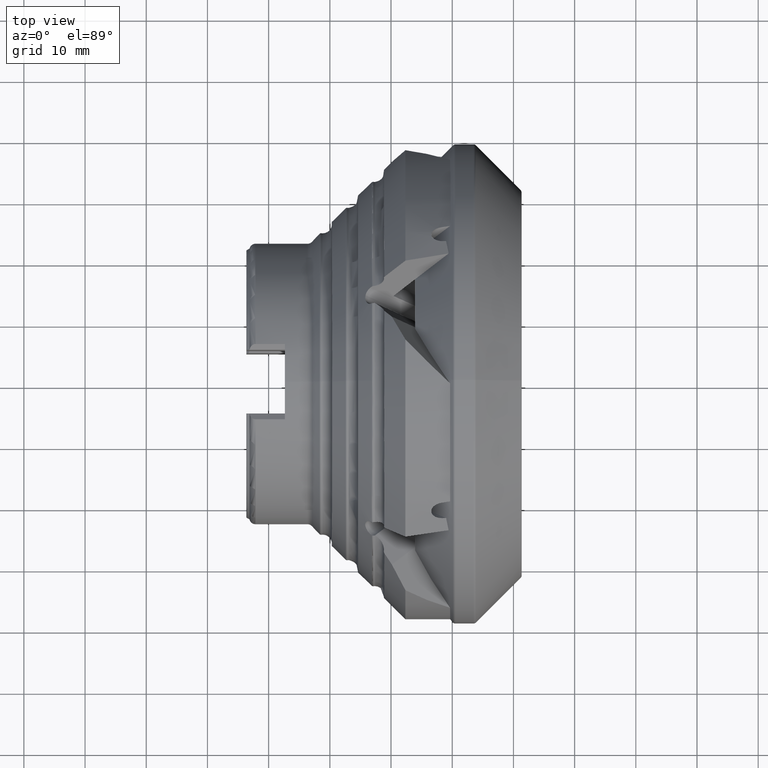
[diagram: clean part render]
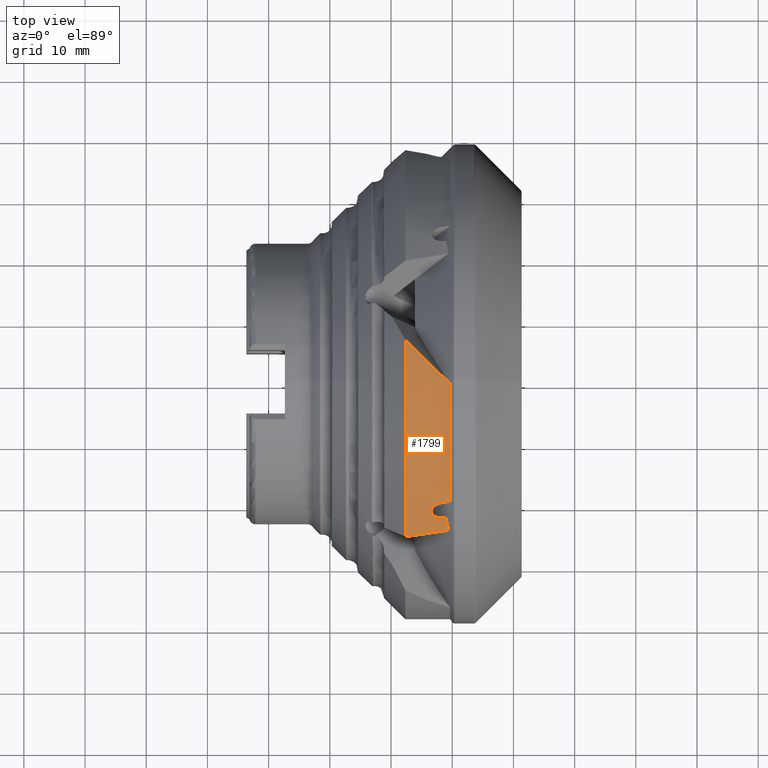
[diagram: same view with one face highlighted and labeled with its STEP entity id]
A machine part, top view. The second image highlights one B-rep face of the part: STEP entity #1799.
In plain terms, the highlighted cylindrical surface (partial cylindrical patch) has radius 38.5 mm, axis along (1, -0, -0).
Its self-contained STEP definition (entity closure, byte-faithful):
#546 = VERTEX_POINT ( 'NONE', #1586 ) ;
#547 = VERTEX_POINT ( 'NONE', #5865 ) ;
#582 = VERTEX_POINT ( 'NONE', #1588 ) ;
#608 = VERTEX_POINT ( 'NONE', #10106 ) ;
#611 = VERTEX_POINT ( 'NONE', #10093 ) ;
#615 = VERTEX_POINT ( 'NONE', #10091 ) ;
#625 = VERTEX_POINT ( 'NONE', #10090 ) ;
#893 = FACE_OUTER_BOUND ( 'NONE', #1278, .T. ) ;
#908 = CYLINDRICAL_SURFACE ( 'NONE', #10183, 38.50000000000000000 ) ;
#946 = B_SPLINE_CURVE_WITH_KNOTS ( 'NONE', 3,
 ( #6259, #6260, #6264, #6265, #6266, #6267, #6268, #6269, #6270, #6271, #6272, #6273, #6274, #6275, #6276, #6277, #6278, #6279, #6280, #6281 ),
 .UNSPECIFIED., .F., .F.,
 ( 4, 2, 2, 2, 2, 2, 2, 2, 2, 4 ),
 ( 0.007588231192986519100, 0.008057779863519376800, 0.008527328534052235400, 0.008996877204585092300, 0.009466425875117950900, 0.009935974545650809500, 0.01040552321618366600, 0.01064029755145009000, 0.01087507188671651600, 0.01134462055724934500 ),
 .UNSPECIFIED. ) ;
#997 =( BOUNDED_CURVE ( )  B_SPLINE_CURVE ( 3, ( #6246, #6245, #6251, #6252 ),
 .UNSPECIFIED., .F., .F. ) 
 B_SPLINE_CURVE_WITH_KNOTS ( ( 4, 4 ),
 ( 0.1297741447534010200, 0.1951501227432078700 ),
 .UNSPECIFIED. ) 
 CURVE ( )  GEOMETRIC_REPRESENTATION_ITEM ( )  RATIONAL_B_SPLINE_CURVE ( ( 1.000000000000000000, 0.9996438635046415200, 0.9996438635046415200, 1.000000000000000000 ) ) 
 REPRESENTATION_ITEM ( '' )  );
#1010 =( BOUNDED_CURVE ( )  B_SPLINE_CURVE ( 3, ( #6158, #6157, #6165, #6166 ),
 .UNSPECIFIED., .F., .F. ) 
 B_SPLINE_CURVE_WITH_KNOTS ( ( 4, 4 ),
 ( 4.794935019442981200, 4.801814565808554000 ),
 .UNSPECIFIED. ) 
 CURVE ( )  GEOMETRIC_REPRESENTATION_ITEM ( )  RATIONAL_B_SPLINE_CURVE ( ( 1.000000000000000000, 0.9999960559907057300, 0.9999960559907057300, 1.000000000000000000 ) ) 
 REPRESENTATION_ITEM ( '' )  );
#1012 =( BOUNDED_CURVE ( )  B_SPLINE_CURVE ( 3, ( #6237, #6238, #6243, #6244 ),
 .UNSPECIFIED., .F., .F. ) 
 B_SPLINE_CURVE_WITH_KNOTS ( ( 4, 4 ),
 ( 4.049123598765458400, 4.236572925115218000 ),
 .UNSPECIFIED. ) 
 CURVE ( )  GEOMETRIC_REPRESENTATION_ITEM ( )  RATIONAL_B_SPLINE_CURVE ( ( 1.000000000000000000, 0.9970740386585559300, 0.9970740386585559300, 1.000000000000000000 ) ) 
 REPRESENTATION_ITEM ( '' )  );
#1014 = B_SPLINE_CURVE_WITH_KNOTS ( 'NONE', 3,
 ( #4808, #4809, #4814, #4815, #4816, #4817, #4818, #4819 ),
 .UNSPECIFIED., .F., .F.,
 ( 4, 2, 2, 4 ),
 ( 0.0000000000000000000, 0.0004693685240489173300, 0.0009387370480978346700, 0.001877474096195672600 ),
 .UNSPECIFIED. ) ;
#1016 =( BOUNDED_CURVE ( )  B_SPLINE_CURVE ( 3, ( #6250, #6249, #6255, #6256 ),
 .UNSPECIFIED., .F., .F. ) 
 B_SPLINE_CURVE_WITH_KNOTS ( ( 4, 4 ),
 ( 4.617844144964361200, 4.653620486408035700 ),
 .UNSPECIFIED. ) 
 CURVE ( )  GEOMETRIC_REPRESENTATION_ITEM ( )  RATIONAL_B_SPLINE_CURVE ( ( 1.000000000000000000, 0.9998933406269189300, 0.9998933406269189300, 1.000000000000000000 ) ) 
 REPRESENTATION_ITEM ( '' )  );
#1145 = ORIENTED_EDGE ( 'NONE', *, *, #5219, .T. ) ;
#1173 = ORIENTED_EDGE ( 'NONE', *, *, #5232, .T. ) ;
#1278 = EDGE_LOOP ( 'NONE', ( #1145, #1173, #2274, #2153, #3391, #2350, #2407, #2184 ) ) ;
#1586 = CARTESIAN_POINT ( 'NONE',  ( -10.58513342630508400, -24.42008277018929600, 29.76423285584736800 ) ) ;
#1588 = CARTESIAN_POINT ( 'NONE',  ( -13.24890545811719500, -20.82203722574316600, 32.38352614786978700 ) ) ;
#1799 = ADVANCED_FACE ( 'NONE', ( #893 ), #908, .T. ) ;
#2153 = ORIENTED_EDGE ( 'NONE', *, *, #5235, .T. ) ;
#2184 = ORIENTED_EDGE ( 'NONE', *, *, #8600, .T. ) ;
#2274 = ORIENTED_EDGE ( 'NONE', *, *, #5236, .F. ) ;
#2350 = ORIENTED_EDGE ( 'NONE', *, *, #5238, .T. ) ;
#2407 = ORIENTED_EDGE ( 'NONE', *, *, #5242, .T. ) ;
#2780 = DIRECTION ( 'NONE',  ( 0.0000000000000000000, 0.0000000000000000000, -1.000000000000000000 ) ) ;
#2781 = CARTESIAN_POINT ( 'NONE',  ( 0.0000000000000000000, 0.0000000000000000000, 0.0000000000000000000 ) ) ;
#2782 = DIRECTION ( 'NONE',  ( 1.000000000000000000, -0.0000000000000000000, -0.0000000000000000000 ) ) ;
#3391 = ORIENTED_EDGE ( 'NONE', *, *, #5239, .T. ) ;
#3499 = VERTEX_POINT ( 'NONE', #8128 ) ;
#4808 = CARTESIAN_POINT ( 'NONE',  ( -13.24890545811719500, -20.82203722574316600, 32.38352614786978700 ) ) ;
#4809 = CARTESIAN_POINT ( 'NONE',  ( -13.16942779111207400, -20.70604201928763300, 32.45810902361333900 ) ) ;
#4814 = CARTESIAN_POINT ( 'NONE',  ( -13.07072295703834700, -20.60349526956583300, 32.52319025780966700 ) ) ;
#4815 = CARTESIAN_POINT ( 'NONE',  ( -12.84462646087095200, -20.41869157577315300, 32.63953057570156300 ) ) ;
#4816 = CARTESIAN_POINT ( 'NONE',  ( -12.71716473134750200, -20.33726432231901500, 32.69024734747878100 ) ) ;
#4817 = CARTESIAN_POINT ( 'NONE',  ( -12.31635575403101700, -20.13018023356589800, 32.81847362058464100 ) ) ;
#4818 = CARTESIAN_POINT ( 'NONE',  ( -12.01527678185007600, -20.03582169711978600, 32.87581863724686600 ) ) ;
#4819 = CARTESIAN_POINT ( 'NONE',  ( -11.70756281324171900, -19.98452280661854300, 32.90697263790369900 ) ) ;
#5219 = EDGE_CURVE ( 'NONE', #625, #3499, #1010, .T. ) ;
#5232 = EDGE_CURVE ( 'NONE', #3499, #611, #8931, .T. ) ;
#5235 = EDGE_CURVE ( 'NONE', #547, #608, #8941, .T. ) ;
#5236 = EDGE_CURVE ( 'NONE', #547, #611, #1012, .T. ) ;
#5238 = EDGE_CURVE ( 'NONE', #546, #615, #997, .T. ) ;
#5239 = EDGE_CURVE ( 'NONE', #608, #546, #1016, .T. ) ;
#5242 = EDGE_CURVE ( 'NONE', #615, #582, #946, .T. ) ;
#5865 = CARTESIAN_POINT ( 'NONE',  ( -17.65000000000000900, 6.630389324819621100, 37.92476680747447700 ) ) ;
#6157 = CARTESIAN_POINT ( 'NONE',  ( -11.25490859388692800, -19.90906097646953300, 32.95280087869134900 ) ) ;
#6158 = CARTESIAN_POINT ( 'NONE',  ( -11.70756281324171900, -19.98452280661854300, 32.90697263790369900 ) ) ;
#6165 = CARTESIAN_POINT ( 'NONE',  ( -10.80238587138589800, -19.83344195431094900, 32.99836927729068500 ) ) ;
#6166 = CARTESIAN_POINT ( 'NONE',  ( -10.35000000000003000, -19.75766663486915700, 33.04367729453515100 ) ) ;
#6210 = CARTESIAN_POINT ( 'NONE',  ( -10.35000000000003200, 0.0000000000000000000, 0.0000000000000000000 ) ) ;
#6211 = DIRECTION ( 'NONE',  ( -1.000000000000000000, -0.0000000000000000000, -0.0000000000000000000 ) ) ;
#6212 = DIRECTION ( 'NONE',  ( 0.0000000000000000000, 0.0000000000000000000, -1.000000000000000000 ) ) ;
#6237 = CARTESIAN_POINT ( 'NONE',  ( -17.65000000000000900, 6.630389324819621100, 37.92476680747447700 ) ) ;
#6238 = CARTESIAN_POINT ( 'NONE',  ( -15.36648493954088800, 4.257256076960209700, 38.33966183986476800 ) ) ;
#6239 = CARTESIAN_POINT ( 'NONE',  ( -17.65000000000000600, 0.0000000000000000000, 0.0000000000000000000 ) ) ;
#6240 = DIRECTION ( 'NONE',  ( 1.000000000000000000, -0.0000000000000000000, -0.0000000000000000000 ) ) ;
#6241 = DIRECTION ( 'NONE',  ( 0.0000000000000000000, 0.0000000000000000000, -1.000000000000000000 ) ) ;
#6243 = CARTESIAN_POINT ( 'NONE',  ( -12.92601087342800000, 1.855709382128033300, 38.53064030079281800 ) ) ;
#6244 = CARTESIAN_POINT ( 'NONE',  ( -10.34999999998584700, -0.5531702613108853100, 38.49602580349162700 ) ) ;
#6245 = CARTESIAN_POINT ( 'NONE',  ( -10.69775518810635300, -23.77134529016114000, 30.29648991199721000 ) ) ;
#6246 = CARTESIAN_POINT ( 'NONE',  ( -10.58513342630508400, -24.42008277018929600, 29.76423285584736800 ) ) ;
#6249 = CARTESIAN_POINT ( 'NONE',  ( -15.29840581747256700, -25.12475801261083000, 29.17545813504367700 ) ) ;
#6250 = CARTESIAN_POINT ( 'NONE',  ( -17.65000000000000600, -25.46908444834344800, 28.87171171515727500 ) ) ;
#6251 = CARTESIAN_POINT ( 'NONE',  ( -10.83851991899740800, -23.10555905419313700, 30.80726048653154700 ) ) ;
#6252 = CARTESIAN_POINT ( 'NONE',  ( -11.00727722460447600, -22.42343539461550600, 31.29599886732335200 ) ) ;
#6255 = CARTESIAN_POINT ( 'NONE',  ( -12.94319908803435100, -24.77505348729401300, 29.47299691724034800 ) ) ;
#6256 = CARTESIAN_POINT ( 'NONE',  ( -10.58513342630508400, -24.42008277018929600, 29.76423285584736800 ) ) ;
#6259 = CARTESIAN_POINT ( 'NONE',  ( -11.00727722460447600, -22.42343539461550600, 31.29599886732335200 ) ) ;
#6260 = CARTESIAN_POINT ( 'NONE',  ( -11.16130479795575200, -22.44777358646359700, 31.27856066780011800 ) ) ;
#6264 = CARTESIAN_POINT ( 'NONE',  ( -11.31662457012527400, -22.46220794499038600, 31.26818257673537400 ) ) ;
#6265 = CARTESIAN_POINT ( 'NONE',  ( -11.62992909645054600, -22.47071211402234400, 31.26207166047662900 ) ) ;
#6266 = CARTESIAN_POINT ( 'NONE',  ( -11.78907523208709500, -22.46455254738128500, 31.26650515475665100 ) ) ;
#6267 = CARTESIAN_POINT ( 'NONE',  ( -12.09966458250802600, -22.42948558595007200, 31.29167049066151300 ) ) ;
#6268 = CARTESIAN_POINT ( 'NONE',  ( -12.25211997472731800, -22.40082833560611400, 31.31222758854252700 ) ) ;
#6269 = CARTESIAN_POINT ( 'NONE',  ( -12.55007810898953300, -22.31612112557626700, 31.37265440772561600 ) ) ;
#6270 = CARTESIAN_POINT ( 'NONE',  ( -12.69338929258694300, -22.26044919921197300, 31.41225703905381300 ) ) ;
#6271 = CARTESIAN_POINT ( 'NONE',  ( -12.95585138442242700, -22.11899275319960300, 31.51202390234853500 ) ) ;
#6272 = CARTESIAN_POINT ( 'NONE',  ( -13.07640037162843200, -22.03195207054010000, 31.57306451698779900 ) ) ;
#6273 = CARTESIAN_POINT ( 'NONE',  ( -13.27096172277531300, -21.82852276339373500, 31.71404907924013000 ) ) ;
#6274 = CARTESIAN_POINT ( 'NONE',  ( -13.34548332102066400, -21.71083266170477100, 31.79485445105704500 ) ) ;
#6275 = CARTESIAN_POINT ( 'NONE',  ( -13.40718398317566000, -21.52236264153469800, 31.92246328893470100 ) ) ;
#6276 = CARTESIAN_POINT ( 'NONE',  ( -13.41976898354294300, -21.45630989807363400, 31.96690406027071800 ) ) ;
#6277 = CARTESIAN_POINT ( 'NONE',  ( -13.42743658211102600, -21.32548330866682200, 32.05432812105873800 ) ) ;
#6278 = CARTESIAN_POINT ( 'NONE',  ( -13.42290114959084900, -21.26000170140838500, 32.09779576688305300 ) ) ;
#6279 = CARTESIAN_POINT ( 'NONE',  ( -13.38499114246500300, -21.06334800515544000, 32.22747325744616400 ) ) ;
#6280 = CARTESIAN_POINT ( 'NONE',  ( -13.32841362913255500, -20.93807695186187300, 32.30891464676653900 ) ) ;
#6281 = CARTESIAN_POINT ( 'NONE',  ( -13.24890545811719500, -20.82203722574316600, 32.38352614786978700 ) ) ;
#6561 = AXIS2_PLACEMENT_3D ( 'NONE', #6210, #6211, #6212 ) ;
#6563 = AXIS2_PLACEMENT_3D ( 'NONE', #6239, #6240, #6241 ) ;
#8128 = CARTESIAN_POINT ( 'NONE',  ( -10.35000000000003000, -19.75766663486915700, 33.04367729453515100 ) ) ;
#8600 = EDGE_CURVE ( 'NONE', #582, #625, #1014, .T. ) ;
#8931 = CIRCLE ( 'NONE', #6561, 38.50000000000000000 ) ;
#8941 = CIRCLE ( 'NONE', #6563, 38.50000000000000000 ) ;
#10090 = CARTESIAN_POINT ( 'NONE',  ( -11.70756281324171900, -19.98452280661854300, 32.90697263790369900 ) ) ;
#10091 = CARTESIAN_POINT ( 'NONE',  ( -11.00727722460447600, -22.42343539461550600, 31.29599886732335200 ) ) ;
#10093 = CARTESIAN_POINT ( 'NONE',  ( -10.34999999998584700, -0.5531702613108853100, 38.49602580349162700 ) ) ;
#10106 = CARTESIAN_POINT ( 'NONE',  ( -17.65000000000000600, -25.46908444834344800, 28.87171171515727500 ) ) ;
#10183 = AXIS2_PLACEMENT_3D ( 'NONE', #2781, #2782, #2780 ) ;